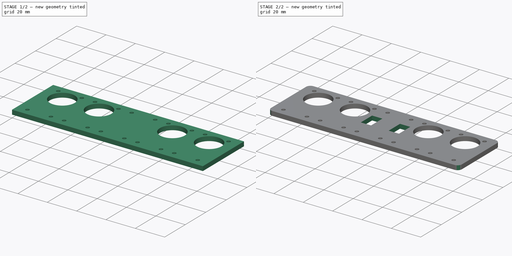
[diagram: build sequence overview — one tinted view per stage of 2, left to right]
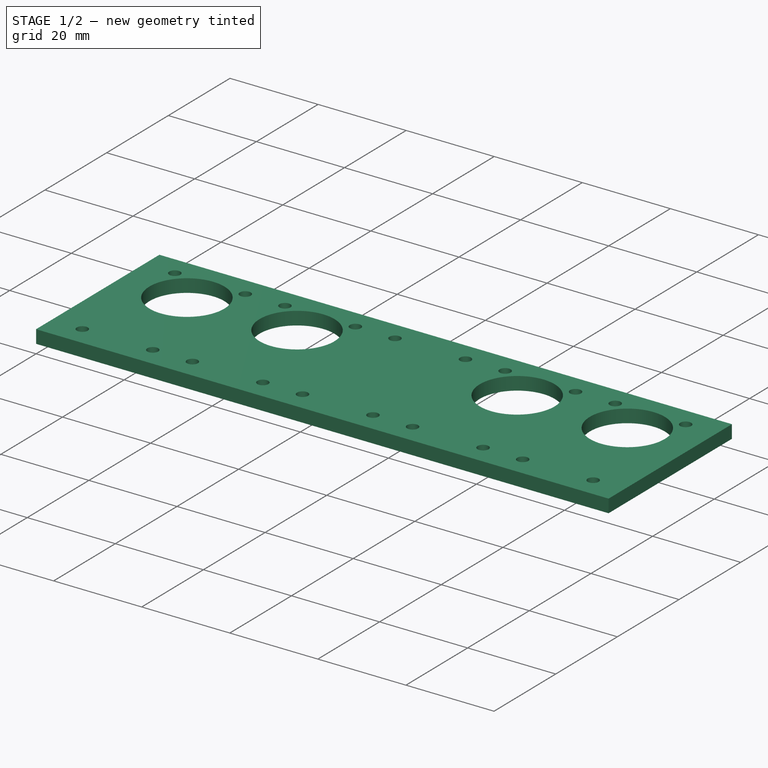
[diagram: stage 1 of 2 — iso view after this stage's code; geometry added in this stage tinted green]
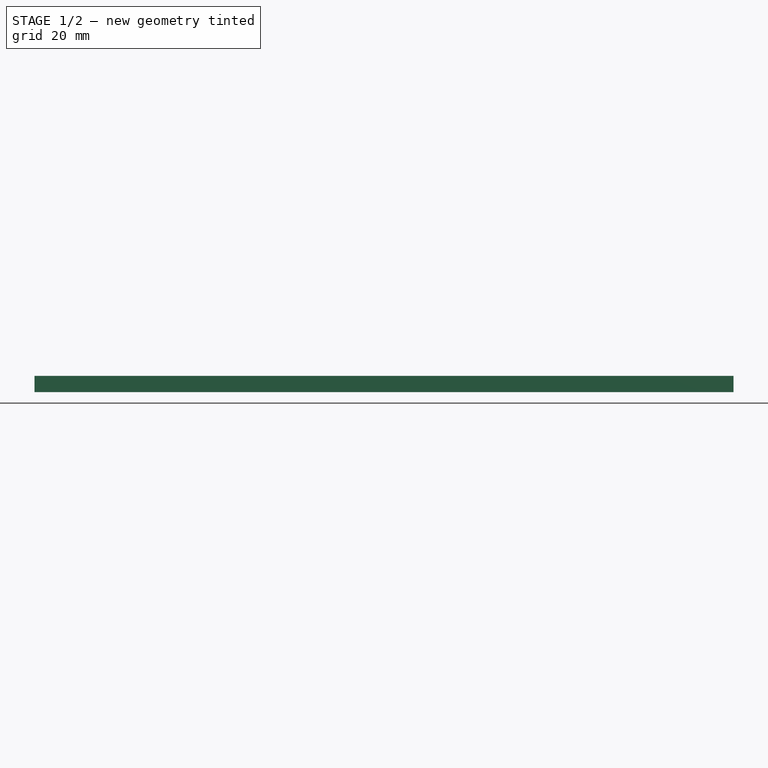
[diagram: stage 1 of 2 — front view after this stage's code; geometry added in this stage tinted green]
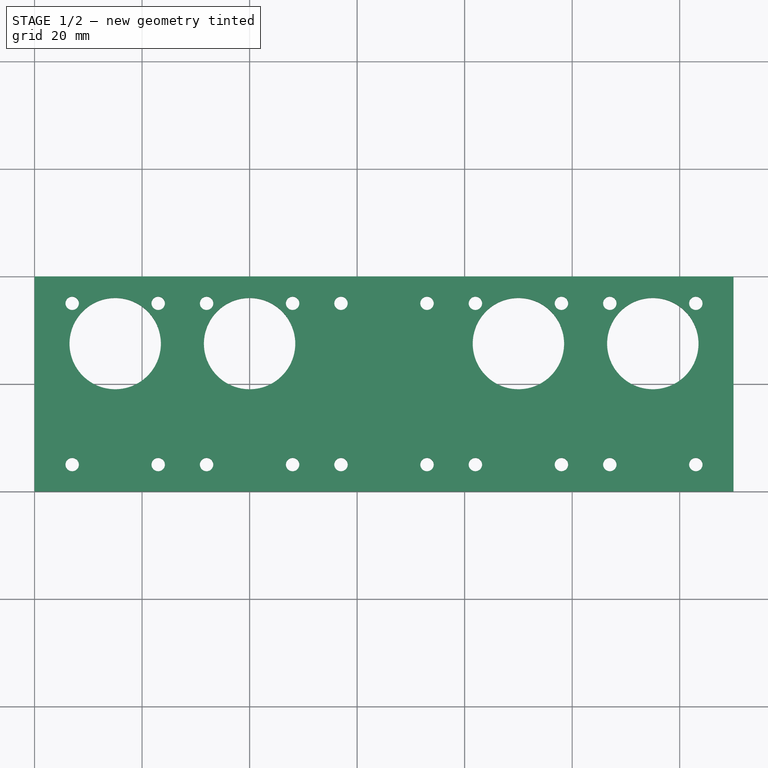
[diagram: stage 1 of 2 — top view after this stage's code; geometry added in this stage tinted green]
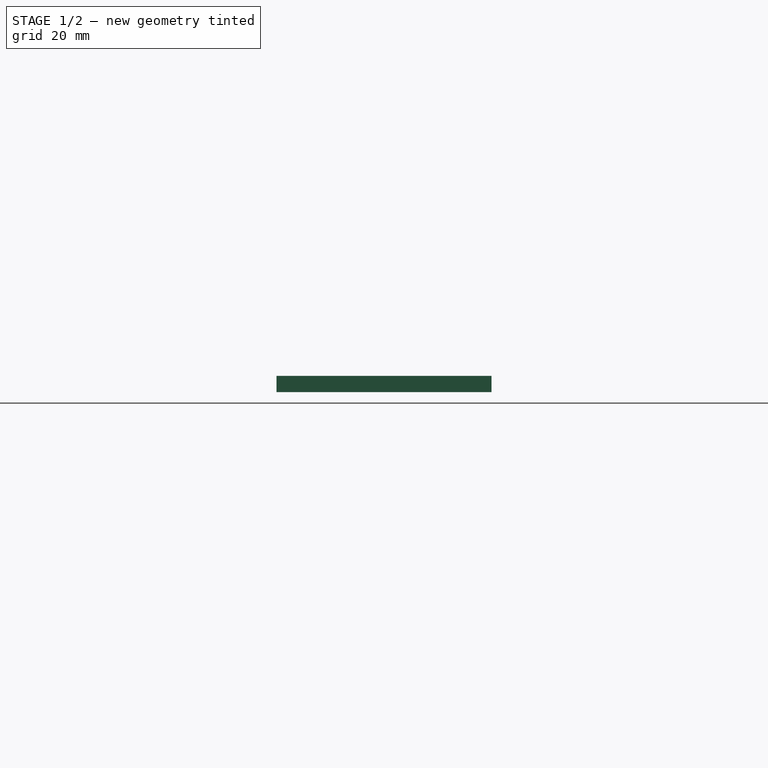
[diagram: stage 1 of 2 — right view after this stage's code; geometry added in this stage tinted green]
FCSTD DOCUMENT  (FreeCAD 0.20R29603 (Git))
Label: BasePlate
License: All rights reserved
LicenseURL: http://en.wikipedia.org/wiki/All_rights_reserved
objects: Sketcher::SketchObject×4, PartDesign::Pocket×3, PartDesign::Pad×1, PartDesign::Body×1
note: 13 computed .brp shape members not serialized (recipe doc carries the construction recipe); baked Part::Feature solids carry a one-line shape summary decoded from their .brp

FEATURE [Sketcher::SketchObject] Sketch
  FullyConstrained = true
  MapMode = 5
  Support = -> [XY_Plane]
  sketch-geometry (8):
    g0: LineSegment StartX=0 StartY=0 StartZ=0 EndX=130 EndY=0 EndZ=0
    g1: LineSegment StartX=130 StartY=0 StartZ=0 EndX=130 EndY=40 EndZ=0
    g2: LineSegment StartX=130 StartY=40 StartZ=0 EndX=0 EndY=40 EndZ=0
    g3: LineSegment StartX=0 StartY=40 StartZ=0 EndX=0 EndY=0 EndZ=0
    g4: Circle CenterX=40 CenterY=27.5 CenterZ=0 NormalX=0 NormalY=0 NormalZ=1 AngleXU=0 Radius=8.5
    g5: Circle CenterX=90 CenterY=27.5 CenterZ=0 NormalX=0 NormalY=0 NormalZ=1 AngleXU=0 Radius=8.5
    g6: Circle CenterX=15 CenterY=27.5 CenterZ=0 NormalX=0 NormalY=0 NormalZ=1 AngleXU=0 Radius=8.5
    g7: Circle CenterX=115 CenterY=27.5 CenterZ=0 NormalX=0 NormalY=0 NormalZ=1 AngleXU=0 Radius=8.5
  constraints (23):
    c: Coincident(g0,g1)
    c: Coincident(g1,g2)
    c: Coincident(g2,g3)
    c: Coincident(g3,g0)
    c: Horizontal(g0)
    c: Horizontal(g2)
    c: Vertical(g1)
    c: Vertical(g3)
    c: Coincident(g0,g-1)
    c: DistanceY(g1,g1) = 40
    c: Diameter(g4) = 17
    c: Diameter(g5) = 17
    c: DistanceY(g4,g2) = 12.5
    c: DistanceY(g4,g5) = 0
    c: DistanceX(g4,g5) = 50
    c: DistanceY(g4,g6) = 0
    c: DistanceY(g7,g5) = 0
    c: DistanceX(g2,g6) = 15
    c: DistanceX(g6,g4) = 25
    c: DistanceX(g5,g7) = 25
    c: DistanceX(g7,g1) = 15
    c: Diameter(g6) = 17
    c: Diameter(g7) = 17
FEATURE [PartDesign::Pad] Pad
  Direction = (0,0,1)
  Length = 3
  Length2 = 10
  Profile = -> Sketch
  ReferenceAxis = -> Sketch [N_Axis]
  Type = 0
FEATURE [Sketcher::SketchObject] Sketch001
  ExternalGeometry = -> [Pad]
  FullyConstrained = true
  MapMode = 5
  Placement = pos=(0,0,3) rot=(0,0,1;0rad)
  Support = -> [Pad]
  sketch-geometry (21):
    g0: Circle CenterX=7 CenterY=35 CenterZ=0 NormalX=0 NormalY=0 NormalZ=1 AngleXU=0 Radius=1.25
    g1: Circle CenterX=23 CenterY=35 CenterZ=0 NormalX=0 NormalY=0 NormalZ=1 AngleXU=0 Radius=1.25
    g2: Circle CenterX=23 CenterY=5 CenterZ=0 NormalX=0 NormalY=0 NormalZ=1 AngleXU=0 Radius=1.25
    g3: Circle CenterX=7 CenterY=5 CenterZ=0 NormalX=0 NormalY=0 NormalZ=1 AngleXU=0 Radius=1.25
    g4: Circle CenterX=107 CenterY=35 CenterZ=0 NormalX=0 NormalY=0 NormalZ=1 AngleXU=0 Radius=1.25
    g5: Circle CenterX=123 CenterY=35 CenterZ=0 NormalX=0 NormalY=0 NormalZ=1 AngleXU=0 Radius=1.25
    g6: Circle CenterX=123 CenterY=5 CenterZ=0 NormalX=0 NormalY=0 NormalZ=1 AngleXU=0 Radius=1.25
    g7: Circle CenterX=107 CenterY=5 CenterZ=0 NormalX=0 NormalY=0 NormalZ=1 AngleXU=0 Radius=1.25
    g8: GeomPoint X=65 Y=27.5 Z=0
    g9: Circle CenterX=57 CenterY=35 CenterZ=0 NormalX=0 NormalY=0 NormalZ=1 AngleXU=0 Radius=1.25
    g10: Circle CenterX=73 CenterY=35 CenterZ=0 NormalX=0 NormalY=0 NormalZ=1 AngleXU=0 Radius=1.25
    g11: Circle CenterX=57 CenterY=5 CenterZ=0 NormalX=0 NormalY=0 NormalZ=1 AngleXU=0 Radius=1.25
    g12: Circle CenterX=73 CenterY=5 CenterZ=0 NormalX=0 NormalY=0 NormalZ=1 AngleXU=0 Radius=1.25
    g13: Circle CenterX=32 CenterY=35 CenterZ=0 NormalX=0 NormalY=0 NormalZ=1 AngleXU=0 Radius=1.25
    g14: Circle CenterX=48 CenterY=35 CenterZ=0 NormalX=0 NormalY=0 NormalZ=1 AngleXU=0 Radius=1.25
    g15: Circle CenterX=32 CenterY=5 CenterZ=0 NormalX=0 NormalY=0 NormalZ=1 AngleXU=0 Radius=1.25
    g16: Circle CenterX=48 CenterY=5 CenterZ=0 NormalX=0 NormalY=0 NormalZ=1 AngleXU=0 Radius=1.25
    g17: Circle CenterX=82 CenterY=35 CenterZ=0 NormalX=0 NormalY=0 NormalZ=1 AngleXU=0 Radius=1.25
    g18: Circle CenterX=98 CenterY=35 CenterZ=0 NormalX=0 NormalY=0 NormalZ=1 AngleXU=0 Radius=1.25
    g19: Circle CenterX=98 CenterY=5 CenterZ=0 NormalX=0 NormalY=0 NormalZ=1 AngleXU=0 Radius=1.25
    g20: Circle CenterX=82 CenterY=5 CenterZ=0 NormalX=0 NormalY=0 NormalZ=1 AngleXU=0 Radius=1.25
  constraints (62):
    c: Diameter(g0) = 2.5
    c: Diameter(g1) = 2.5
    c: Diameter(g2) = 2.5
    c: Diameter(g3) = 2.5
    c: DistanceY(g0,g1) = 0
    c: DistanceY(g3,g2) = 0
    c: DistanceX(g0,g3) = 0
    c: DistanceX(g1,g2) = 0
    c: DistanceX(g0,g1) = 16
    c: DistanceY(g2,g1) = 30
    c: DistanceX(g-3,g1) = 8
    c: Diameter(g4) = 2.5
    c: Diameter(g7) = 2.5
    c: Diameter(g6) = 2.5
    c: Diameter(g5) = 2.5
    c: DistanceX(g4,g5) = 16
    c: DistanceX(g-4,g5) = 8
    c: DistanceX(g4,g7) = 0
    c: DistanceX(g5,g6) = 0
    c: DistanceY(g4,g5) = 0
    c: DistanceY(g6,g7) = 0
    c: DistanceY(g2,g7) = 0
    c: DistanceY(g4,g1) = 0
    c: DistanceX(g8,g-4) = 50
    c: DistanceY(g-4,g8) = 0
    c: Diameter(g10) = 2.5
    c: Diameter(g9) = 2.5
    c: Diameter(g11) = 2.5
    c: Diameter(g12) = 2.5
    c: DistanceY(g9,g1) = 0
    c: DistanceY(g10,g4) = 0
    c: DistanceX(g9,g8) = 8
    c: DistanceX(g8,g10) = 8
    c: DistanceX(g9,g11) = 0
    c: DistanceX(g10,g12) = 0
    c: DistanceY(g2,g11) = 0
    c: DistanceY(g7,g12) = 0
    c: DistanceY(g-3,g0) = 7.5
    c: Diameter(g14) = 2.5
    c: Diameter(g13) = 2.5
    c: Diameter(g15) = 2.5
    c: Diameter(g16) = 2.5
    c: DistanceX(g16,g14) = 0
    c: DistanceX(g13,g15) = 0
    c: DistanceX(g13,g-6) = 8
    c: DistanceX(g-6,g14) = 8
    c: DistanceY(g13,g1) = 0
    c: DistanceY(g14,g13) = 0
    c: DistanceY(g2,g15) = 0
    c: DistanceY(g15,g16) = 0
    c: Diameter(g17) = 2.5
    c: Diameter(g18) = 2.5
    c: Diameter(g20) = 2.5
    c: Diameter(g19) = 2.5
    c: DistanceX(g17,g20) = 0
    c: DistanceX(g18,g19) = 0
    c: DistanceY(g4,g18) = 0
    c: DistanceY(g18,g17) = 0
    c: DistanceY(g12,g20) = 0
    c: DistanceY(g7,g19) = 0
    c: DistanceX(g17,g-7) = 8
    c: DistanceX(g-7,g18) = 8
FEATURE [PartDesign::Pocket] Pocket
  BaseFeature = -> Pad
  Direction = (0,0,-1)
  Length = 5
  Length2 = 5
  Profile = -> Sketch001
  ReferenceAxis = -> Sketch001 [N_Axis]
  Type = 0
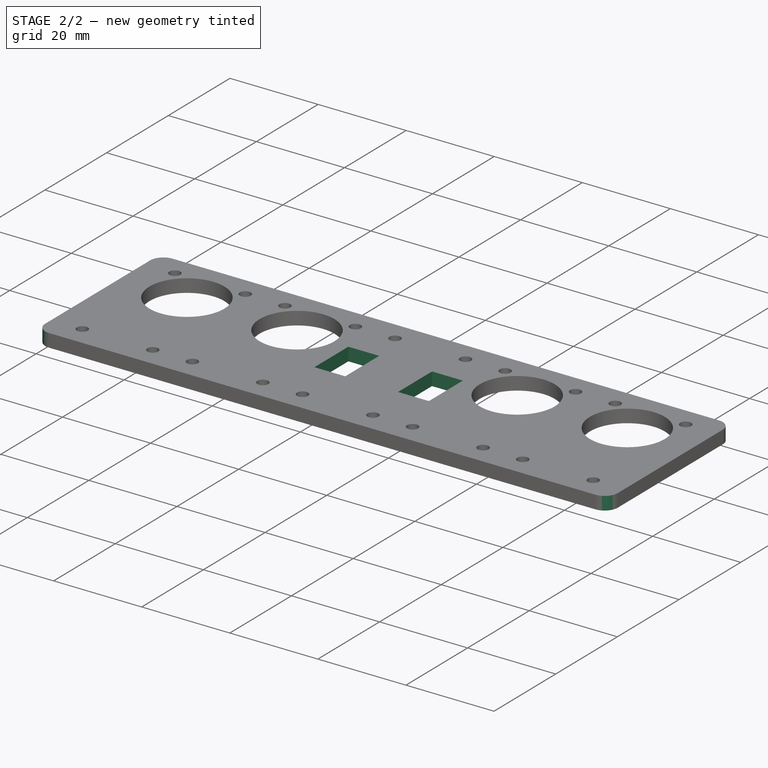
[diagram: stage 2 of 2 — iso view after this stage's code; geometry added in this stage tinted green]
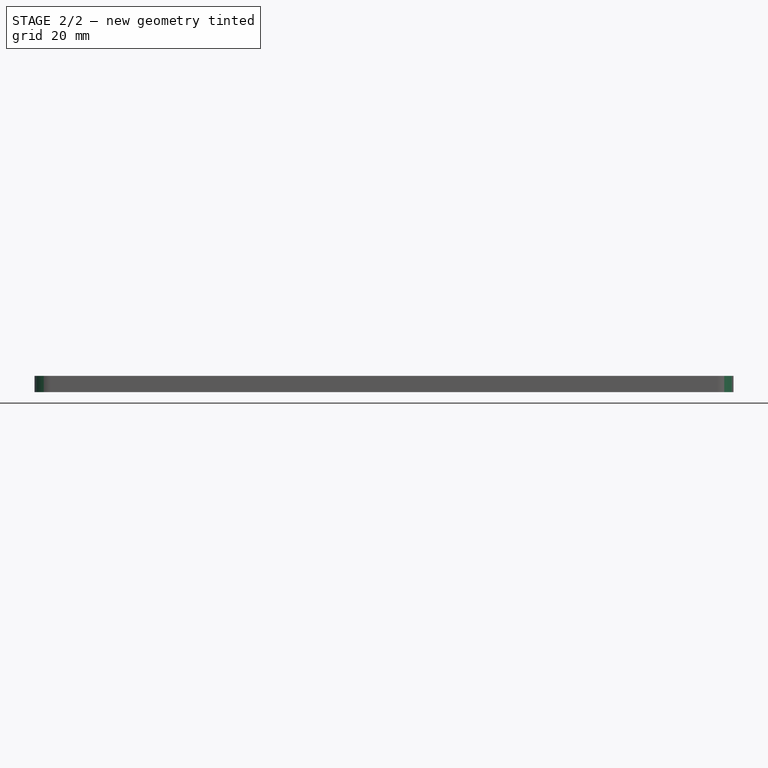
[diagram: stage 2 of 2 — front view after this stage's code; geometry added in this stage tinted green]
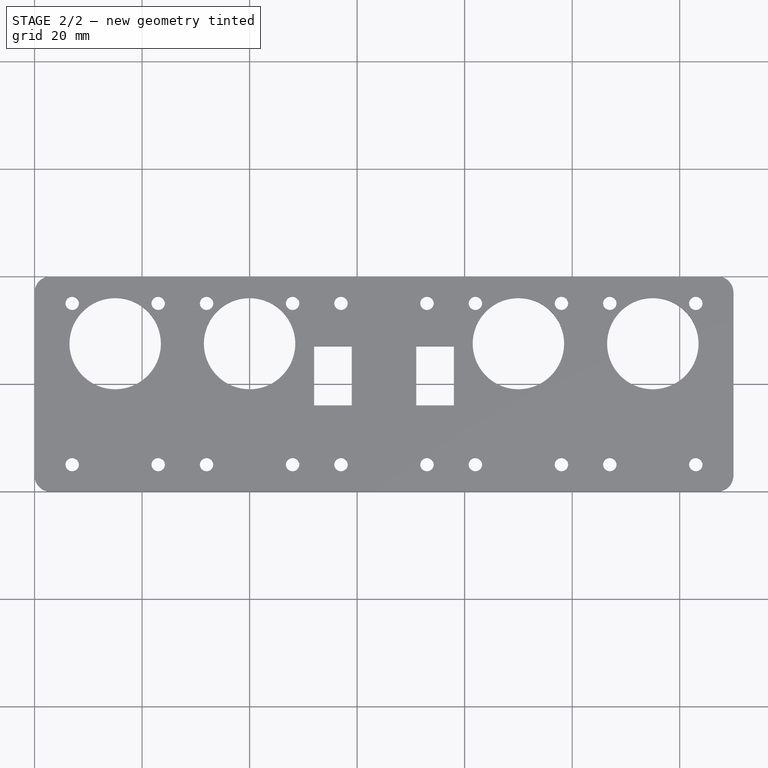
[diagram: stage 2 of 2 — top view after this stage's code; geometry added in this stage tinted green]
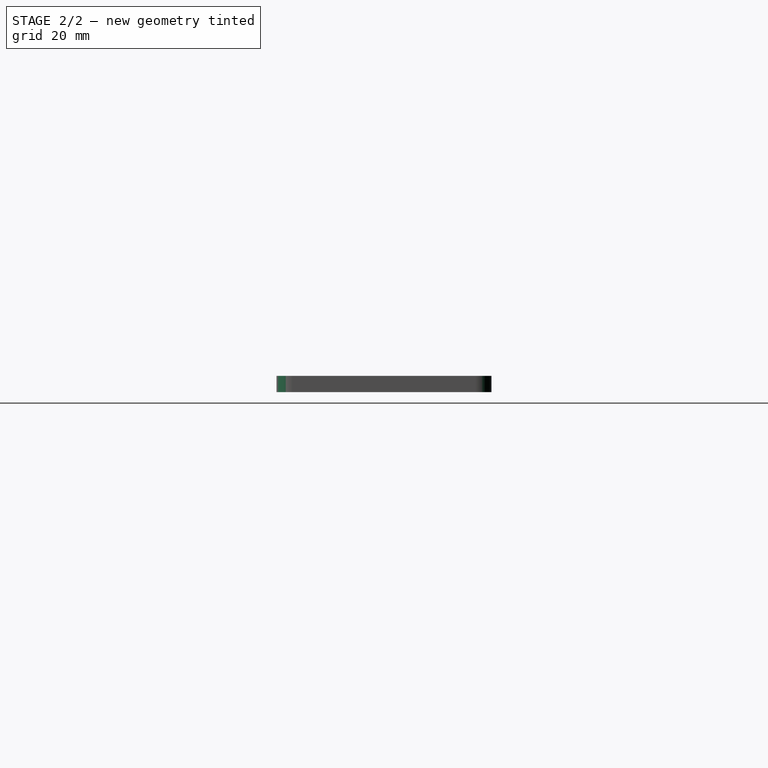
[diagram: stage 2 of 2 — right view after this stage's code; geometry added in this stage tinted green]
FEATURE [Sketcher::SketchObject] Sketch002
  ExternalGeometry = -> [Pocket]
  FullyConstrained = true
  MapMode = 5
  Placement = pos=(0,0,3) rot=(0,0,1;0rad)
  Support = -> [Pocket]
  sketch-geometry (8):
    g0: LineSegment StartX=78 StartY=27 StartZ=0 EndX=71 EndY=27 EndZ=0
    g1: LineSegment StartX=71 StartY=27 StartZ=0 EndX=71 EndY=16 EndZ=0
    g2: LineSegment StartX=71 StartY=16 StartZ=0 EndX=78 EndY=16 EndZ=0
    g3: LineSegment StartX=78 StartY=16 StartZ=0 EndX=78 EndY=27 EndZ=0
    g4: LineSegment StartX=52 StartY=27 StartZ=0 EndX=59 EndY=27 EndZ=0
    g5: LineSegment StartX=59 StartY=27 StartZ=0 EndX=59 EndY=16 EndZ=0
    g6: LineSegment StartX=59 StartY=16 StartZ=0 EndX=52 EndY=16 EndZ=0
    g7: LineSegment StartX=52 StartY=16 StartZ=0 EndX=52 EndY=27 EndZ=0
  constraints (24):
    c: Coincident(g0,g1)
    c: Coincident(g1,g2)
    c: Coincident(g2,g3)
    c: Coincident(g3,g0)
    c: Horizontal(g0)
    c: Horizontal(g2)
    c: Vertical(g1)
    c: Vertical(g3)
    c: Coincident(g4,g5)
    c: Coincident(g5,g6)
    c: Coincident(g6,g7)
    c: Coincident(g7,g4)
    c: Horizontal(g4)
    c: Horizontal(g6)
    c: Vertical(g5)
    c: Vertical(g7)
    c: DistanceX(g0,g0) = 7
    c: DistanceX(g4,g4) = 7
    c: DistanceY(g3,g3) = 11
    c: DistanceY(g7,g7) = 11
    c: DistanceX(g-5,g4) = 2
    c: DistanceX(g0,g-6) = 2
    c: DistanceY(g0,g-6) = 8
    c: DistanceY(g4,g-5) = 8
FEATURE [PartDesign::Pocket] Pocket001
  BaseFeature = -> Pocket
  Direction = (0,0,-1)
  Length = 5
  Length2 = 5
  Profile = -> Sketch002
  ReferenceAxis = -> Sketch002 [N_Axis]
  Type = 0
FEATURE [Sketcher::SketchObject] Sketch003
  ExternalGeometry = -> [Pocket001]
  FullyConstrained = true
  MapMode = 5
  Placement = pos=(0,0,3) rot=(0,0,1;0rad)
  Support = -> [Pocket001]
  sketch-geometry (20):
    g0: ArcOfCircle CenterX=3 CenterY=37 CenterZ=0 NormalX=0 NormalY=0 NormalZ=1 AngleXU=0 Radius=3 StartAngle=1.5708 EndAngle=3.14159
    g1: ArcOfCircle CenterX=3 CenterY=3 CenterZ=0 NormalX=0 NormalY=0 NormalZ=1 AngleXU=0 Radius=3 StartAngle=3.14159 EndAngle=4.71239
    g2: ArcOfCircle CenterX=127 CenterY=3 CenterZ=0 NormalX=0 NormalY=0 NormalZ=1 AngleXU=0 Radius=3 StartAngle=4.71239 EndAngle=6.28319
    g3: ArcOfCircle CenterX=127 CenterY=37 CenterZ=0 NormalX=0 NormalY=0 NormalZ=1 AngleXU=0 Radius=3 StartAngle=1e-15 EndAngle=1.5708
    g4: LineSegment StartX=127 StartY=40 StartZ=0 EndX=127 EndY=43 EndZ=0
    g5: LineSegment StartX=127 StartY=43 StartZ=0 EndX=133 EndY=43 EndZ=0
    g6: LineSegment StartX=130 StartY=37 StartZ=0 EndX=133 EndY=37 EndZ=0
    g7: LineSegment StartX=133 StartY=37 StartZ=0 EndX=133 EndY=43 EndZ=0
    g8: LineSegment StartX=127 StartY=0 StartZ=0 EndX=127 EndY=-3 EndZ=0
    g9: LineSegment StartX=127 StartY=-3 StartZ=0 EndX=133 EndY=-3 EndZ=0
    g10: LineSegment StartX=130 StartY=3 StartZ=0 EndX=133 EndY=3 EndZ=0
    g11: LineSegment StartX=133 StartY=3 StartZ=0 EndX=133 EndY=-3 EndZ=0
    g12: LineSegment StartX=0 StartY=3 StartZ=0 EndX=-3 EndY=3 EndZ=0
    g13: LineSegment StartX=3 StartY=0 StartZ=0 EndX=3 EndY=-3 EndZ=0
    g14: LineSegment StartX=3 StartY=-3 StartZ=0 EndX=-3 EndY=-3 EndZ=0
    g15: LineSegment StartX=-3 StartY=-3 StartZ=0 EndX=-3 EndY=3 EndZ=0
    g16: LineSegment StartX=0 StartY=37 StartZ=0 EndX=-3 EndY=37 EndZ=0
    g17: LineSegment StartX=3 StartY=40 StartZ=0 EndX=3 EndY=43 EndZ=0
    g18: LineSegment StartX=3 StartY=43 StartZ=0 EndX=-3 EndY=43 EndZ=0
    g19: LineSegment StartX=-3 StartY=43 StartZ=0 EndX=-3 EndY=37 EndZ=0
  constraints (64):
    c: DistanceX(g3,g-4) = 3
    c: DistanceY(g3,g-4) = 3
    c: Diameter(g3) = 6
    c: DistanceX(g3,g3) = 0
    c: DistanceY(g3,g3) = 0
    c: Coincident(g4,g3)
    c: Vertical(g4)
    c: Coincident(g5,g4)
    c: Horizontal(g5)
    c: Coincident(g6,g3)
    c: Horizontal(g6)
    c: Coincident(g7,g6)
    c: Coincident(g7,g5)
    c: Vertical(g7)
    c: DistanceY(g4,g4) = 3
    c: DistanceX(g6,g6) = 3
    c: Diameter(g2) = 6
    c: DistanceY(g2,g2) = 0
    c: DistanceX(g2,g2) = 0
    c: DistanceX(g2,g-4) = 3
    c: DistanceY(g-4,g2) = 3
    c: Coincident(g8,g2)
    c: Vertical(g8)
    c: Coincident(g9,g8)
    c: Horizontal(g9)
    c: Coincident(g10,g2)
    c: Horizontal(g10)
    c: Coincident(g11,g10)
    c: Coincident(g11,g9)
    c: Vertical(g11)
    c: DistanceX(g10,g10) = 3
    c: DistanceY(g8,g8) = 3
    c: Diameter(g1) = 6
    c: DistanceX(g-3,g1) = 3
    c: DistanceX(g1,g1) = 0
    c: DistanceY(g-3,g1) = 3
    c: DistanceY(g1,g1) = 0
    c: Coincident(g12,g1)
    c: Horizontal(g12)
    c: Coincident(g13,g1)
    c: Vertical(g13)
    c: Coincident(g14,g13)
    c: Horizontal(g14)
    c: Coincident(g15,g14)
    c: Coincident(g15,g12)
    c: Vertical(g15)
    c: DistanceX(g12,g12) = 3
    c: DistanceY(g13,g13) = 3
    c: Diameter(g0) = 6
    c: DistanceY(g0,g-3) = 3
    c: DistanceY(g0,g0) = 0
    c: DistanceX(g-3,g0) = 3
    c: DistanceX(g0,g0) = 0
    c: Coincident(g16,g0)
    c: Horizontal(g16)
    c: Coincident(g17,g0)
    c: Vertical(g17)
    c: Coincident(g18,g17)
    c: Horizontal(g18)
    c: Coincident(g19,g18)
    c: Coincident(g19,g16)
    c: Vertical(g19)
    c: DistanceY(g17,g17) = 3
    c: DistanceX(g16,g16) = 3
FEATURE [PartDesign::Pocket] Pocket002
  BaseFeature = -> Pocket001
  Direction = (0,0,-1)
  Length = 5
  Length2 = 5
  Profile = -> Sketch003
  ReferenceAxis = -> Sketch003 [N_Axis]
  Type = 0
FEATURE [PartDesign::Body] Body
  Group = -> [Sketch,Pad,Sketch001,Pocket,Sketch002,Pocket001,Sketch003,Pocket002]
  Origin = -> Origin
  Tip = -> Pocket002
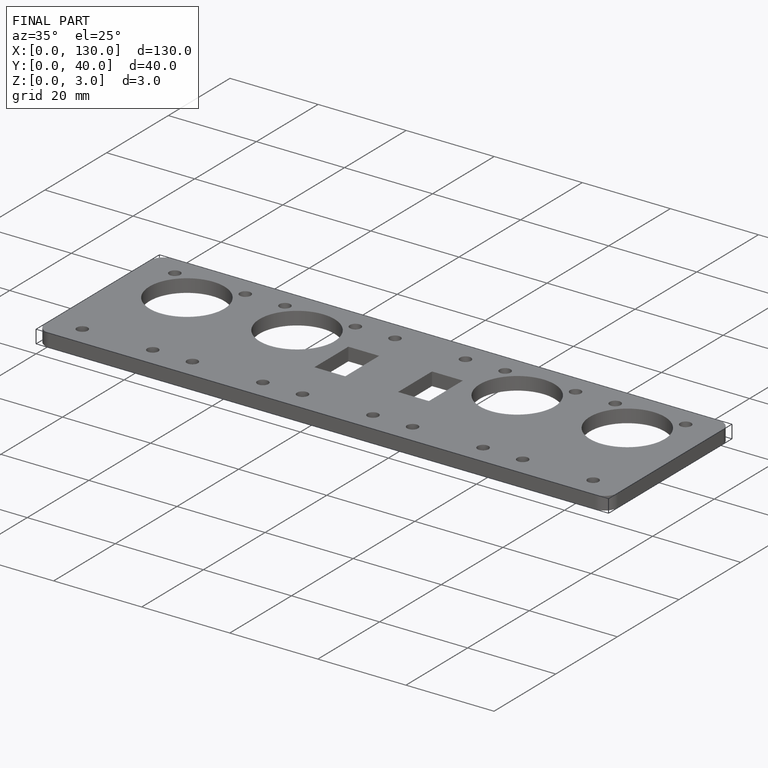
[diagram: finished part — iso view with bounding-box wireframe]
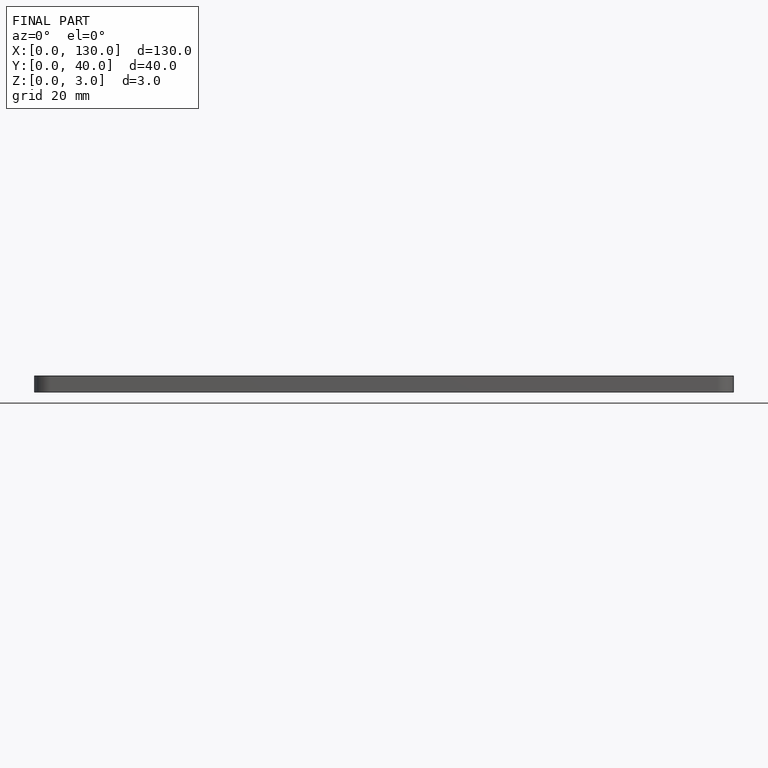
[diagram: finished part — front view with bounding-box wireframe]
